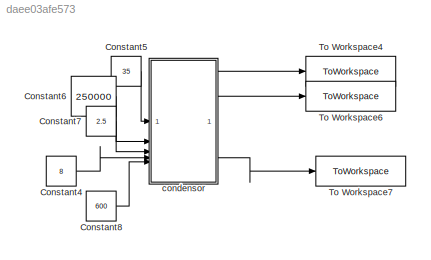
MODEL slx_daee03afe573
KIND model
CONFIG AbsTol = auto
CONFIG EnableMultiTasking = off
CONFIG FixedStep = auto
CONFIG MaxStep = auto
CONFIG MinStep = auto
CONFIG RelTol = 1e-3
CONFIG SampleTimeConstraint = Unconstrained
CONFIG SolverName = ode45
CONFIG StartTime = 0.0
CONFIG StopTime = 30
BLOCK [Constant] Constant4
  Value = 8
BLOCK [Constant] Constant5
  Value = 35
BLOCK [Constant] Constant6
  Value = 250000
BLOCK [Constant] Constant7
  Value = 2.5
BLOCK [Constant] Constant8
  Value = 600
BLOCK [ToWorkspace] To Workspace4
  FixptAsFi = on
  MaxDataPoints = inf
  SampleTime = -1
  SaveFormat = Timeseries
  VariableName = pc
BLOCK [ToWorkspace] To Workspace6
  FixptAsFi = on
  MaxDataPoints = inf
  SampleTime = -1
  SaveFormat = Timeseries
  VariableName = tcw2
BLOCK [ToWorkspace] To Workspace7
  FixptAsFi = on
  MaxDataPoints = inf
  SampleTime = -1
  SaveFormat = Timeseries
  VariableName = Qc
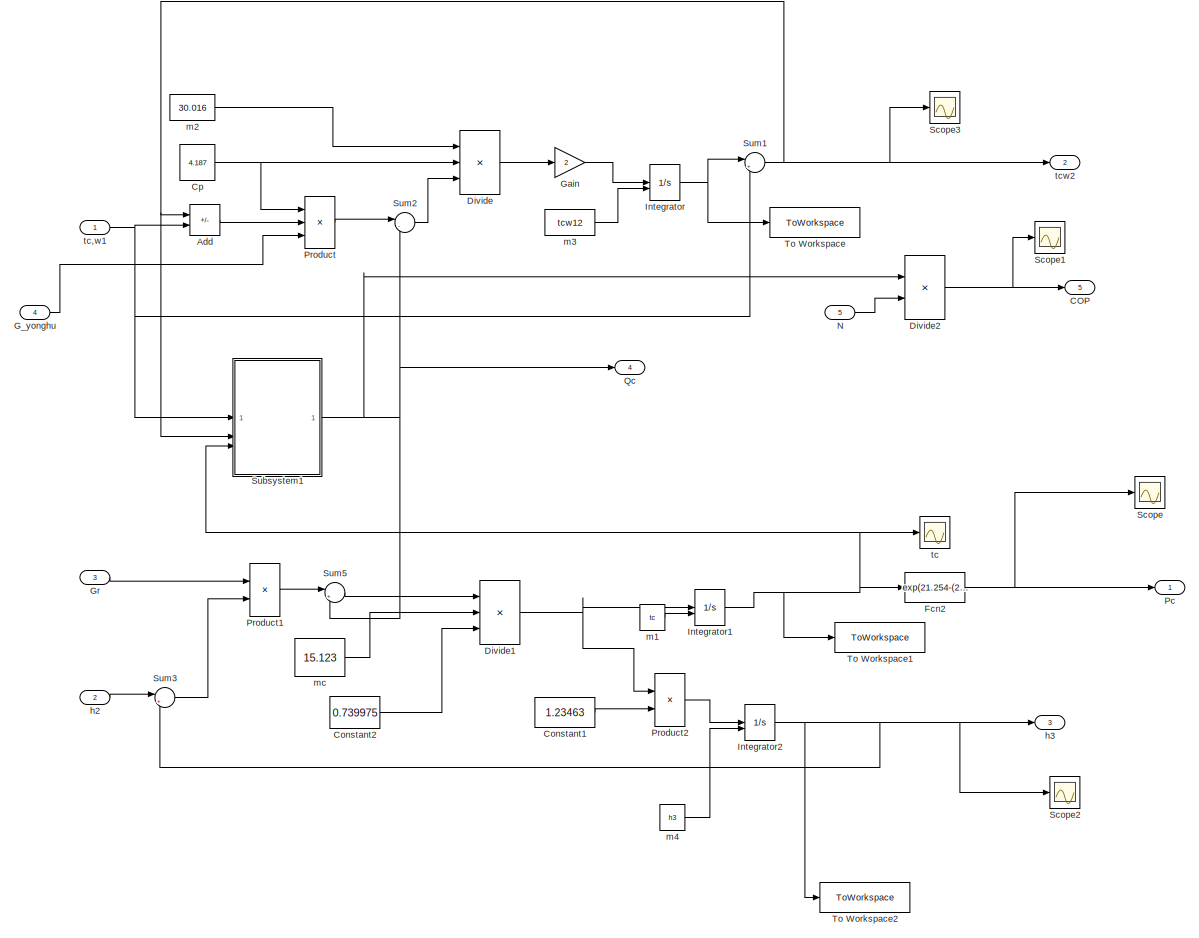
[diagram: condensor - part 1/1, most of the canvas]
BLOCK [SubSystem] condensor
BLOCK [Sum] condensor/Add
  IconShape = rectangular
  Inputs = +-
BLOCK [Outport] condensor/COP
  Port = 5
BLOCK [Constant] condensor/Constant1
  Value = 1.23463
BLOCK [Constant] condensor/Constant2
  Value = 0.739975
BLOCK [Constant] condensor/Cp
  Value = 4.187
BLOCK [Product] condensor/Divide
  Inputs = //*
BLOCK [Product] condensor/Divide1
  Inputs = *//
BLOCK [Product] condensor/Divide2
  Inputs = */
BLOCK [Fcn] condensor/Fcn2
  Expr = exp(21.254-(2025.452/(u+248.94)))*10^(-3)
BLOCK [Inport] condensor/G_yonghu
  Port = 4
BLOCK [Gain] condensor/Gain
  Gain = 2
BLOCK [Inport] condensor/Gr
  Port = 3
BLOCK [Integrator] condensor/Integrator
  InitialConditionSource = external
BLOCK [Integrator] condensor/Integrator1
  InitialConditionSource = external
BLOCK [Integrator] condensor/Integrator2
  InitialConditionSource = external
BLOCK [Inport] condensor/N
  Port = 5
BLOCK [Outport] condensor/Pc
BLOCK [Product] condensor/Product
  Inputs = 3
BLOCK [Product] condensor/Product1
BLOCK [Product] condensor/Product2
BLOCK [Outport] condensor/Qc
  Port = 4
BLOCK [Scope] condensor/Scope
  Floating = off
  NumInputPorts = 1
  ScopeSpecificationString = Simulink.scopes.TimeScopeBlockCfg('CurrentConfiguration', extmgr.ConfigurationSet(extmgr.Configuration('Core','General UI',true),extmgr.Configuration('Core','Source UI',true),extmgr.Configuration('Sources','WiredSimulink',true,'DataLoggingVariableName','ScopeData9'),extmgr.Configuration('Visuals','Time Domain',true,'SerializedDisplays',{struct('MinYLimReal','77.56772','MaxYLimReal','5143.28731','Y...<+1377ch>
BLOCK [Scope] condensor/Scope1
  Floating = off
  NumInputPorts = 1
  ScopeSpecificationString = Simulink.scopes.TimeScopeBlockCfg('CurrentConfiguration', extmgr.ConfigurationSet(extmgr.Configuration('Core','General UI',true),extmgr.Configuration('Core','Source UI',true),extmgr.Configuration('Sources','WiredSimulink',true,'DataLoggingVariableName','ScopeData3'),extmgr.Configuration('Visuals','Time Domain',true,'SerializedDisplays',{struct('MinYLimReal','-8.47856','MaxYLimReal','4.40626','YLab...<+1366ch>
BLOCK [Scope] condensor/Scope2
  Floating = off
  NumInputPorts = 1
  ScopeSpecificationString = Simulink.scopes.TimeScopeBlockCfg('CurrentConfiguration', extmgr.ConfigurationSet(extmgr.Configuration('Core','General UI',true),extmgr.Configuration('Core','Source UI',true),extmgr.Configuration('Sources','WiredSimulink',true,'DataLoggingVariableName','ScopeData4'),extmgr.Configuration('Visuals','Time Domain',true,'SerializedDisplays',{struct('MinYLimReal','246.24988','MaxYLimReal','383.75107','Y...<+1384ch>
BLOCK [Scope] condensor/Scope3
  Floating = off
  NumInputPorts = 1
  ScopeSpecificationString = Simulink.scopes.TimeScopeBlockCfg('CurrentConfiguration', extmgr.ConfigurationSet(extmgr.Configuration('Core','General UI',true),extmgr.Configuration('Core','Source UI',true),extmgr.Configuration('Sources','WiredSimulink',true,'DataLoggingVariableName','ScopeData5'),extmgr.Configuration('Visuals','Time Domain',true,'SerializedDisplays',{struct('MinYLimReal','-23.3674','MaxYLimReal','53.7378','YLab...<+1363ch>
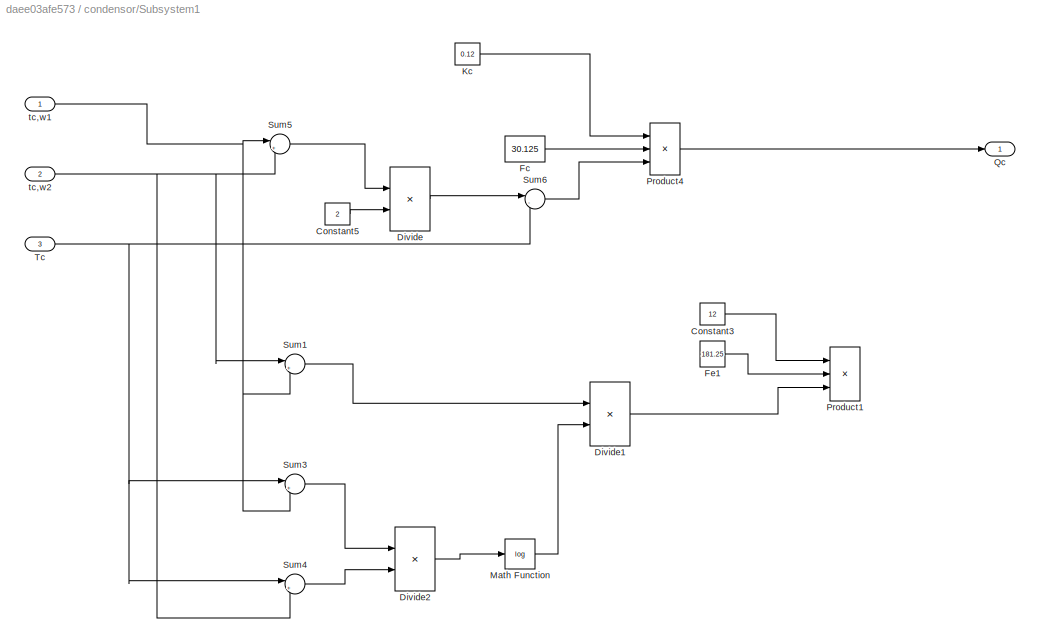
BLOCK [SubSystem] condensor/Subsystem1
BLOCK [Constant] condensor/Subsystem1/Constant3
  Value = 12
BLOCK [Constant] condensor/Subsystem1/Constant5
  Value = 2
BLOCK [Product] condensor/Subsystem1/Divide
  Inputs = */
BLOCK [Product] condensor/Subsystem1/Divide1
  Inputs = */
BLOCK [Product] condensor/Subsystem1/Divide2
  Inputs = */
BLOCK [Constant] condensor/Subsystem1/Fc
  Value = 30.125
BLOCK [Constant] condensor/Subsystem1/Fe1
  Value = 181.25
BLOCK [Constant] condensor/Subsystem1/Kc
  Value = 0.12
BLOCK [Math] condensor/Subsystem1/Math Function
  Operator = log
BLOCK [Product] condensor/Subsystem1/Product1
  Inputs = 3
BLOCK [Product] condensor/Subsystem1/Product4
  Inputs = 3
BLOCK [Outport] condensor/Subsystem1/Qc
BLOCK [Sum] condensor/Subsystem1/Sum1
  Inputs = |+-
BLOCK [Sum] condensor/Subsystem1/Sum3
  Inputs = |+-
BLOCK [Sum] condensor/Subsystem1/Sum4
  Inputs = |+-
BLOCK [Sum] condensor/Subsystem1/Sum5
  Inputs = |++
BLOCK [Sum] condensor/Subsystem1/Sum6
  Inputs = |-+
BLOCK [Inport] condensor/Subsystem1/Tc
  Port = 3
BLOCK [Inport] condensor/Subsystem1/tc,w1
BLOCK [Inport] condensor/Subsystem1/tc,w2
  Port = 2
BLOCK [Sum] condensor/Sum1
  Inputs = |+-
BLOCK [Sum] condensor/Sum2
  Inputs = |-+
BLOCK [Sum] condensor/Sum3
  Inputs = |+-
BLOCK [Sum] condensor/Sum5
  Inputs = |+-
BLOCK [ToWorkspace] condensor/To Workspace
  FixptAsFi = on
  MaxDataPoints = inf
  SampleTime = -1
  SaveFormat = Timeseries
  VariableName = tcw12
BLOCK [ToWorkspace] condensor/To Workspace1
  FixptAsFi = on
  MaxDataPoints = inf
  SampleTime = -1
  SaveFormat = Timeseries
  VariableName = tc
BLOCK [ToWorkspace] condensor/To Workspace2
  FixptAsFi = on
  MaxDataPoints = inf
  SampleTime = -1
  SaveFormat = Timeseries
  VariableName = h3
BLOCK [Inport] condensor/h2
  Port = 2
BLOCK [Outport] condensor/h3
  Port = 3
BLOCK [Constant] condensor/m1
  Value = tc
BLOCK [Constant] condensor/m2
  Value = 30.016
BLOCK [Constant] condensor/m3
  Value = tcw12
BLOCK [Constant] condensor/m4
  Value = h3
BLOCK [Constant] condensor/mc
  Value = 15.123
BLOCK [Scope] condensor/tc
  Floating = off
  NumInputPorts = 1
  ScopeSpecificationString = Simulink.scopes.TimeScopeBlockCfg('CurrentConfiguration', extmgr.ConfigurationSet(extmgr.Configuration('Core','General UI',true),extmgr.Configuration('Core','Source UI',true),extmgr.Configuration('Sources','WiredSimulink',true),extmgr.Configuration('Visuals','Time Domain',true,'SerializedDisplays',{struct('MinYLimReal','44.88013','MaxYLimReal','96.07882','YLabelReal','','MinYLimMag','44.88013','Ma...<+1356ch>
BLOCK [Inport] condensor/tc,w1
BLOCK [Outport] condensor/tcw2
  Port = 2
LINE Constant4:1 -> condensor:4
LINE Constant5:1 -> condensor:1
LINE Constant6:1 -> condensor:2
LINE Constant7:1 -> condensor:3
LINE Constant8:1 -> condensor:5
LINE condensor/Add:1 -> condensor/Product:2
LINE condensor/Constant1:1 -> condensor/Product2:2
LINE condensor/Constant2:1 -> condensor/Divide1:3
NET condensor/Cp:1 -> condensor/Divide:2, condensor/Product:1
NET condensor/Divide1:1 -> condensor/Integrator1:1, condensor/Product2:1
NET condensor/Divide2:1 -> condensor/COP:1, condensor/Scope1:1
LINE condensor/Divide:1 -> condensor/Gain:1
NET condensor/Fcn2:1 -> condensor/Pc:1, condensor/Scope:1
LINE condensor/G_yonghu:1 -> condensor/Product:3
LINE condensor/Gain:1 -> condensor/Integrator:1
LINE condensor/Gr:1 -> condensor/Product1:1
NET condensor/Integrator1:1 -> condensor/Fcn2:1, condensor/Subsystem1:3, condensor/To Workspace1:1, condensor/tc:1
NET condensor/Integrator2:1 -> condensor/Scope2:1, condensor/Sum3:2, condensor/To Workspace2:1, condensor/h3:1
NET condensor/Integrator:1 -> condensor/Sum1:1, condensor/To Workspace:1
LINE condensor/N:1 -> condensor/Divide2:2
LINE condensor/Product1:1 -> condensor/Sum5:1
LINE condensor/Product2:1 -> condensor/Integrator2:1
LINE condensor/Product:1 -> condensor/Sum2:1
LINE condensor/Subsystem1/Constant3:1 -> condensor/Subsystem1/Product1:1
LINE condensor/Subsystem1/Constant5:1 -> condensor/Subsystem1/Divide:2
LINE condensor/Subsystem1/Divide1:1 -> condensor/Subsystem1/Product1:3
LINE condensor/Subsystem1/Divide2:1 -> condensor/Subsystem1/Math Function:1
LINE condensor/Subsystem1/Divide:1 -> condensor/Subsystem1/Sum6:1
LINE condensor/Subsystem1/Fc:1 -> condensor/Subsystem1/Product4:2
LINE condensor/Subsystem1/Fe1:1 -> condensor/Subsystem1/Product1:2
LINE condensor/Subsystem1/Kc:1 -> condensor/Subsystem1/Product4:1
LINE condensor/Subsystem1/Math Function:1 -> condensor/Subsystem1/Divide1:2
LINE condensor/Subsystem1/Product4:1 -> condensor/Subsystem1/Qc:1
LINE condensor/Subsystem1/Sum1:1 -> condensor/Subsystem1/Divide1:1
LINE condensor/Subsystem1/Sum3:1 -> condensor/Subsystem1/Divide2:1
LINE condensor/Subsystem1/Sum4:1 -> condensor/Subsystem1/Divide2:2
LINE condensor/Subsystem1/Sum5:1 -> condensor/Subsystem1/Divide:1
LINE condensor/Subsystem1/Sum6:1 -> condensor/Subsystem1/Product4:3
NET condensor/Subsystem1/Tc:1 -> condensor/Subsystem1/Sum3:1, condensor/Subsystem1/Sum4:1, condensor/Subsystem1/Sum6:2
NET condensor/Subsystem1/tc,w1:1 -> condensor/Subsystem1/Sum1:2, condensor/Subsystem1/Sum3:2, condensor/Subsystem1/Sum5:1
NET condensor/Subsystem1/tc,w2:1 -> condensor/Subsystem1/Sum1:1, condensor/Subsystem1/Sum4:2, condensor/Subsystem1/Sum5:2
NET condensor/Subsystem1:1 -> condensor/Divide2:1, condensor/Qc:1, condensor/Sum2:2, condensor/Sum5:2
NET condensor/Sum1:1 -> condensor/Add:1, condensor/Scope3:1, condensor/Subsystem1:2, condensor/tcw2:1
LINE condensor/Sum2:1 -> condensor/Divide:3
LINE condensor/Sum3:1 -> condensor/Product1:2
LINE condensor/Sum5:1 -> condensor/Divide1:1
LINE condensor/h2:1 -> condensor/Sum3:1
LINE condensor/m1:1 -> condensor/Integrator1:2
LINE condensor/m2:1 -> condensor/Divide:1
LINE condensor/m3:1 -> condensor/Integrator:2
LINE condensor/m4:1 -> condensor/Integrator2:2
LINE condensor/mc:1 -> condensor/Divide1:2
NET condensor/tc,w1:1 -> condensor/Add:2, condensor/Subsystem1:1, condensor/Sum1:2
LINE condensor:1 -> To Workspace4:1
LINE condensor:2 -> To Workspace6:1
LINE condensor:4 -> To Workspace7:1
note: NET lines group one-source signal fan-out (src -> all destinations, sorted); 1:1 wires keep LINE
